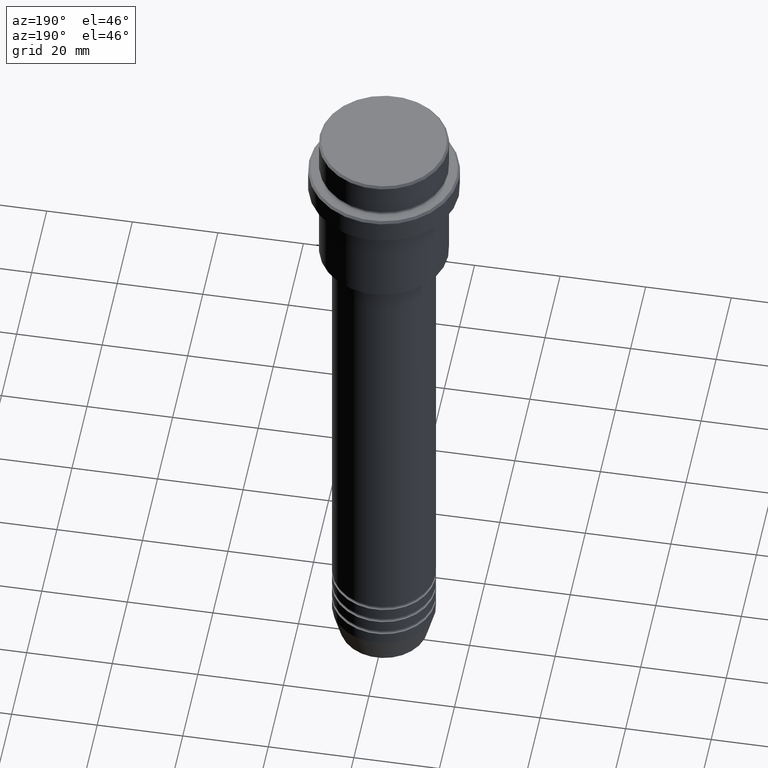
[diagram: clean part render]
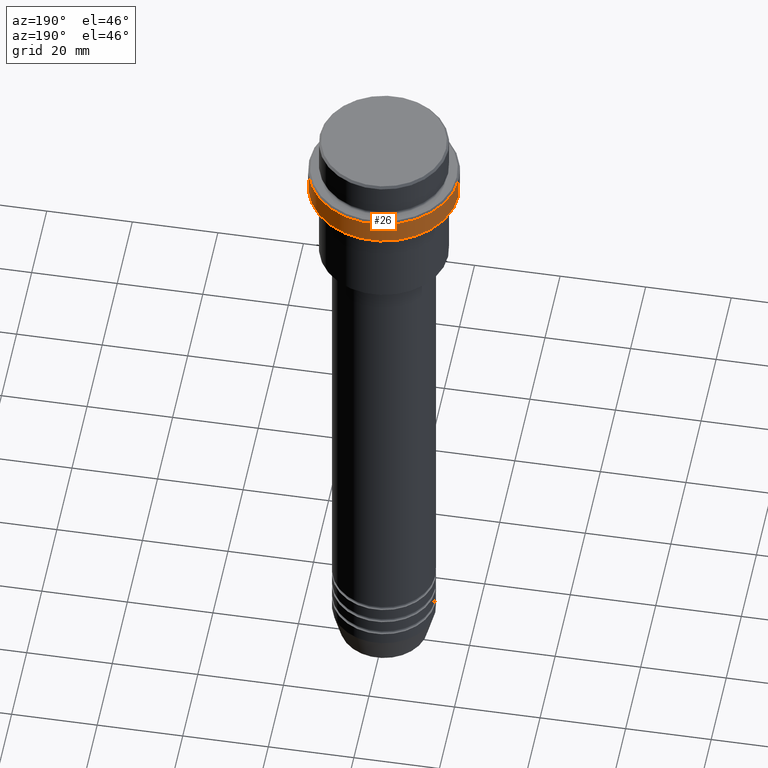
[diagram: same view with one face highlighted and labeled with its STEP entity id]
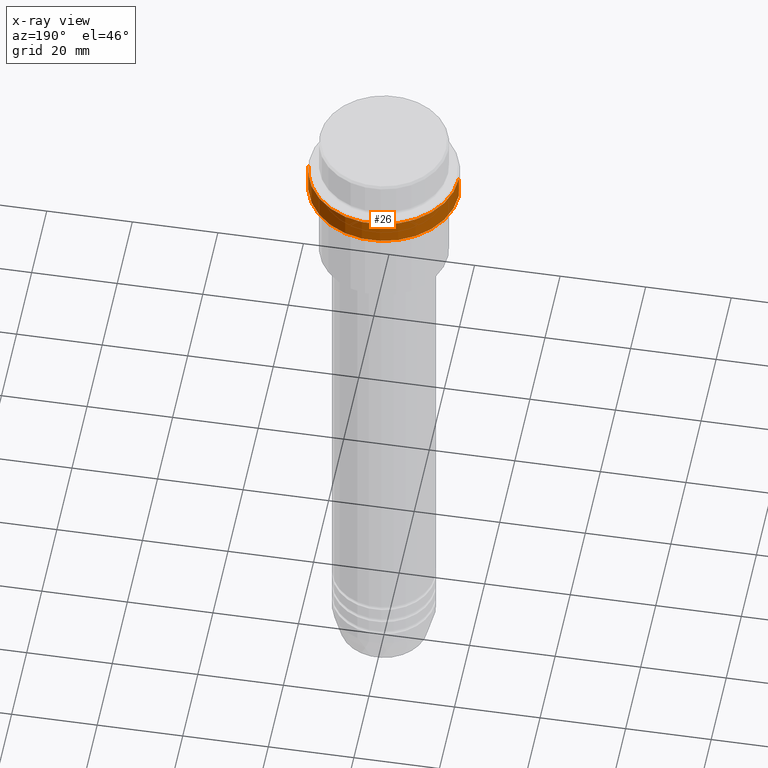
[diagram: x-ray of the same camera — body ghosted, the highlighted face saturated]
A machine part, auxiliary view. The second image highlights one B-rep face of the part: STEP entity #26.
The next image is the same camera in x-ray: the body ghosted, the highlighted face saturated — about 0% of this face is hidden behind the body in this view.
In plain terms, the highlighted cylindrical surface (partial cylindrical patch) has radius 17.5 mm, axis along (-0, -0, 1).
Its self-contained STEP definition (entity closure, byte-faithful):
#8 = AXIS2_PLACEMENT_3D ( 'NONE', #1123, #1222, #142 ) ;
#26 = ADVANCED_FACE ( 'NONE', ( #478 ), #252, .T. ) ;
#41 = CARTESIAN_POINT ( 'NONE',  ( 0.000000000000000000, 0.000000000000000000, -15.00000000000000000 ) ) ;
#65 = AXIS2_PLACEMENT_3D ( 'NONE', #555, #561, #572 ) ;
#119 = VERTEX_POINT ( 'NONE', #1244 ) ;
#142 = DIRECTION ( 'NONE',  ( 1.000000000000000000, 0.000000000000000000, 0.000000000000000000 ) ) ;
#176 = AXIS2_PLACEMENT_3D ( 'NONE', #41, #499, #284 ) ;
#202 = VERTEX_POINT ( 'NONE', #1173 ) ;
#214 = ORIENTED_EDGE ( 'NONE', *, *, #1143, .F. ) ;
#250 = CARTESIAN_POINT ( 'NONE',  ( 17.50000000000000000, 0.000000000000000000, -9.500000000000014211 ) ) ;
#252 = CYLINDRICAL_SURFACE ( 'NONE', #8, 17.50000000000000000 ) ;
#284 = DIRECTION ( 'NONE',  ( 1.000000000000000000, 0.000000000000000000, 0.000000000000000000 ) ) ;
#315 = CARTESIAN_POINT ( 'NONE',  ( -17.50000000000000000, 2.143131898507868248E-15, -15.00000000000000000 ) ) ;
#340 = VERTEX_POINT ( 'NONE', #315 ) ;
#385 = VECTOR ( 'NONE', #1176, 1000.000000000000000 ) ;
#405 = DIRECTION ( 'NONE',  ( -0.000000000000000000, -0.000000000000000000, 1.000000000000000000 ) ) ;
#418 = LINE ( 'NONE', #1061, #1025 ) ;
#433 = ORIENTED_EDGE ( 'NONE', *, *, #1031, .T. ) ;
#478 = FACE_OUTER_BOUND ( 'NONE', #1337, .T. ) ;
#499 = DIRECTION ( 'NONE',  ( -0.000000000000000000, -0.000000000000000000, 1.000000000000000000 ) ) ;
#529 = EDGE_CURVE ( 'NONE', #119, #340, #1224, .T. ) ;
#555 = CARTESIAN_POINT ( 'NONE',  ( 0.000000000000000000, 0.000000000000000000, -9.500000000000014211 ) ) ;
#561 = DIRECTION ( 'NONE',  ( 0.000000000000000000, 0.000000000000000000, -1.000000000000000000 ) ) ;
#572 = DIRECTION ( 'NONE',  ( 1.000000000000000000, 0.000000000000000000, 0.000000000000000000 ) ) ;
#679 = CIRCLE ( 'NONE', #65, 17.50000000000000000 ) ;
#739 = CARTESIAN_POINT ( 'NONE',  ( 17.50000000000000000, 0.000000000000000000, 0.000000000000000000 ) ) ;
#810 = EDGE_CURVE ( 'NONE', #202, #876, #679, .T. ) ;
#876 = VERTEX_POINT ( 'NONE', #250 ) ;
#1025 = VECTOR ( 'NONE', #405, 1000.000000000000000 ) ;
#1031 = EDGE_CURVE ( 'NONE', #340, #202, #418, .T. ) ;
#1061 = CARTESIAN_POINT ( 'NONE',  ( -17.50000000000000000, 2.143131898507868248E-15, 0.000000000000000000 ) ) ;
#1113 = ORIENTED_EDGE ( 'NONE', *, *, #529, .T. ) ;
#1123 = CARTESIAN_POINT ( 'NONE',  ( 0.000000000000000000, 0.000000000000000000, 0.000000000000000000 ) ) ;
#1143 = EDGE_CURVE ( 'NONE', #119, #876, #1389, .T. ) ;
#1173 = CARTESIAN_POINT ( 'NONE',  ( -17.50000000000000000, 2.143131898507868248E-15, -9.500000000000014211 ) ) ;
#1176 = DIRECTION ( 'NONE',  ( -0.000000000000000000, -0.000000000000000000, 1.000000000000000000 ) ) ;
#1222 = DIRECTION ( 'NONE',  ( -0.000000000000000000, -0.000000000000000000, 1.000000000000000000 ) ) ;
#1224 = CIRCLE ( 'NONE', #176, 17.50000000000000000 ) ;
#1244 = CARTESIAN_POINT ( 'NONE',  ( 17.50000000000000000, 0.000000000000000000, -15.00000000000000000 ) ) ;
#1321 = ORIENTED_EDGE ( 'NONE', *, *, #810, .T. ) ;
#1337 = EDGE_LOOP ( 'NONE', ( #1113, #433, #1321, #214 ) ) ;
#1389 = LINE ( 'NONE', #739, #385 ) ;